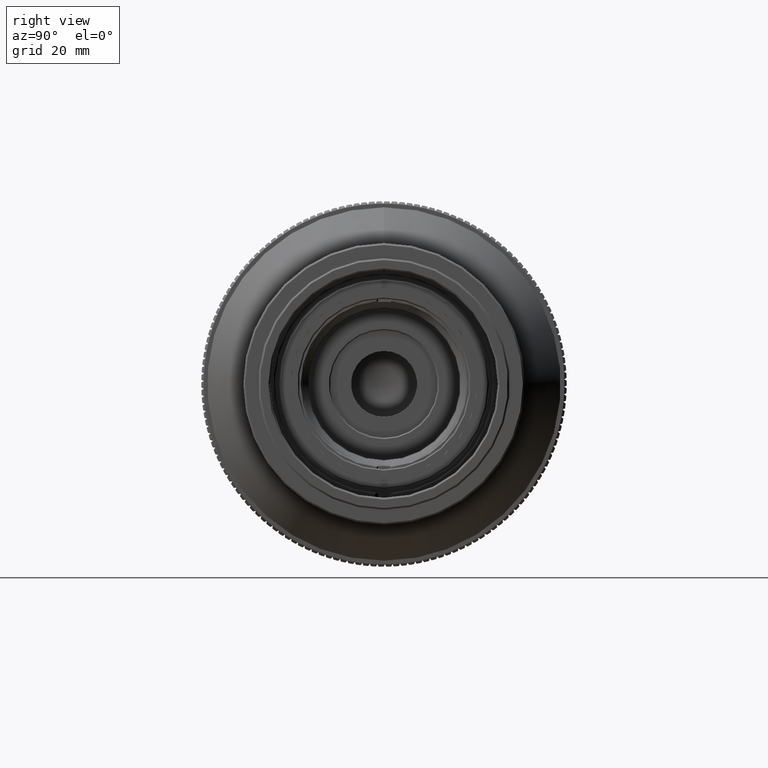
[diagram: clean part render]
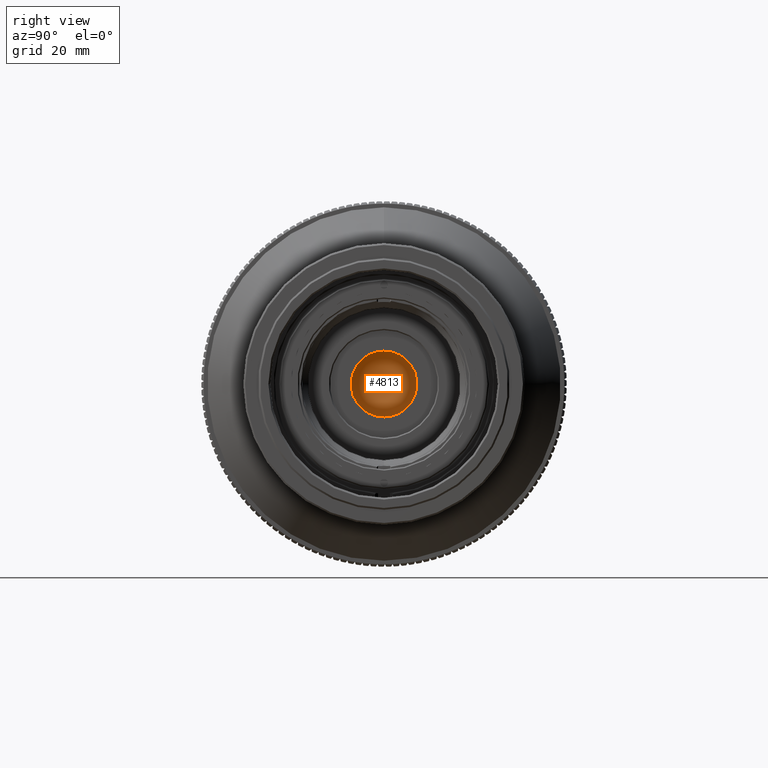
[diagram: same view with one face highlighted and labeled with its STEP entity id]
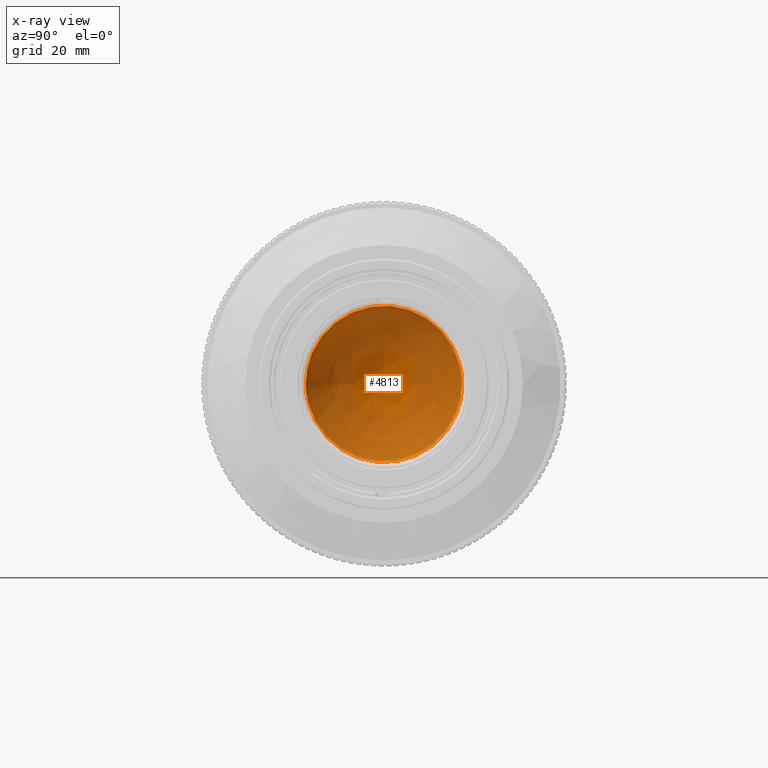
[diagram: x-ray of the same camera — body ghosted, the highlighted face saturated]
A machine part, right view. The second image highlights one B-rep face of the part: STEP entity #4813.
The next image is the same camera in x-ray: the body ghosted, the highlighted face saturated — about 82% of this face is hidden behind the body in this view.
In plain terms, the highlighted face is a freeform B-spline surface patch.
Its self-contained STEP definition (entity closure, byte-faithful):
#427 = CARTESIAN_POINT ( 'NONE',  ( 8.200000000000017100, 1.698731680499783000, -12.94654435383073800 ) ) ;
#713 = CARTESIAN_POINT ( 'NONE',  ( 8.199999999999997500, -9.528877319605241400, -8.927243212022219200 ) ) ;
#1044 = CARTESIAN_POINT ( 'NONE',  ( 8.200000000000004600, -12.96585654110461800, -1.709786976523573100 ) ) ;
#2227 = ORIENTED_EDGE ( 'NONE', *, *, #18118, .T. ) ;
#2489 = CARTESIAN_POINT ( 'NONE',  ( 8.200000000000025900, -0.8432829929322723800, 13.03025609195274000 ) ) ;
#2776 = CARTESIAN_POINT ( 'NONE',  ( 8.199999999999995700, 5.775295745691816600, 11.71078025835466900 ) ) ;
#3083 = CARTESIAN_POINT ( 'NONE',  ( 8.199999999999992200, 13.05044060558875600, 0.8620959433687409600 ) ) ;
#3424 = CARTESIAN_POINT ( 'NONE',  ( 8.200000000000004600, 12.36563833854069600, 4.193855915052433000 ) ) ;
#3711 = CARTESIAN_POINT ( 'NONE',  ( 8.200000000000008200, -10.37213271549747200, 7.965893339155259800 ) ) ;
#4813 = ADVANCED_FACE ( 'N', ( #48497 ), #68210, .F. ) ;
#5303 = CARTESIAN_POINT ( 'NONE',  ( 12.30021357082934100, -13.15614047808118400, -7.561363266006059000 ) ) ;
#5605 = VERTEX_POINT ( 'NONE', #42072 ) ;
#6984 = CARTESIAN_POINT ( 'NONE',  ( 8.199999999999997500, -11.72865552792572600, -5.786556079696522300 ) ) ;
#7263 = CARTESIAN_POINT ( 'NONE',  ( 8.200000000000006400, -5.005972773443474500, -12.07456242581705500 ) ) ;
#7576 = CARTESIAN_POINT ( 'NONE',  ( 8.199999999999997500, -11.32787469151737100, -6.536088900341035000 ) ) ;
#7912 = CARTESIAN_POINT ( 'NONE',  ( 8.199999999999983300, -3.388397724653562800, -12.61011335969059600 ) ) ;
#8220 = CARTESIAN_POINT ( 'NONE',  ( 8.199999999999990400, -12.36563833854069500, -4.193855915052430400 ) ) ;
#9696 = CARTESIAN_POINT ( 'NONE',  ( 8.199999999999985100, -7.952605061036169200, 10.38234783606360500 ) ) ;
#10339 = CARTESIAN_POINT ( 'NONE',  ( 8.200000000000017100, 10.36176191178639500, 7.945623890882695100 ) ) ;
#10636 = CARTESIAN_POINT ( 'NONE',  ( 8.199999999999999300, -9.830704729450852500, 8.626293204337784500 ) ) ;
#12548 = CARTESIAN_POINT ( 'NONE',  ( -5.544883043207582900, -6.127532647081194400, 7.377263526474753700 ) ) ;
#14236 = CARTESIAN_POINT ( 'NONE',  ( 8.199999999999995700, 11.89052231528123300, -5.395612734562442700 ) ) ;
#14559 = CARTESIAN_POINT ( 'NONE',  ( 8.199999999999983300, -4.205163689619561200, -12.36174730481860400 ) ) ;
#15156 = CARTESIAN_POINT ( 'NONE',  ( 8.199999999999997500, 6.526018627403152200, -11.30967765888454800 ) ) ;
#15471 = CARTESIAN_POINT ( 'NONE',  ( 8.199999999999995700, 7.952605061036154900, -10.38234783606361900 ) ) ;
#16936 = CARTESIAN_POINT ( 'NONE',  ( 8.200000000000001100, 11.72865552792572800, 5.786556079696524100 ) ) ;
#17243 = CARTESIAN_POINT ( 'NONE',  ( 8.199999999999995700, -5.769833465191856800, 11.71352848876192900 ) ) ;
#17527 = CARTESIAN_POINT ( 'NONE',  ( 8.200000000000001100, -0.4166853982991031700, 13.05072515442535600 ) ) ;
#17601 = B_SPLINE_CURVE_WITH_KNOTS ( 'NONE', 3,
 ( #17866, #3083, #53277, #81379, #60771, #3424, #67310, #16936, #46679, #88320, #10339, #52645, #66996, #82298, #53573, #32598, #60463, #2776, #82590, #38560, #31672, #32281, #45453, #61068, #17527, #2489, #52958, #67625, #25077, #88651, #89554, #17243, #89231, #88948, #9696, #45746, #10636, #3711, #53912, #24772, #67911, #46081, #31364, #74832, #75164, #31967, #74236 ),
 .UNSPECIFIED., .F., .F.,
 ( 4, 2, 2, 2, 2, 2, 2, 2, 2, 1, 2, 2, 2, 2, 2, 2, 2, 2, 2, 2, 2, 2, 2, 4 ),
 ( 0.0000000000000000000, 0.002549579276392495900, 0.003824368914588743600, 0.005099158552784990000, 0.007648737829177482800, 0.008923527467373730500, 0.01019831710556997500, 0.01274789638196247200, 0.01402268602015872300, 0.01529747565835497600, 0.01657226529655123100, 0.01784705493474747800, 0.02039663421113998100, 0.02167142384933623500, 0.02294621348753248700, 0.02549579276392498600, 0.02677058240212123300, 0.02804537204031748100, 0.03059495131670998000, 0.03314453059310247500, 0.03441932023129872600, 0.03569410986949497100, 0.03824368914588745900, 0.04079326842227995500 ),
 .UNSPECIFIED. ) ;
#17866 = CARTESIAN_POINT ( 'NONE',  ( 8.199999999999990400, 13.05044060558875600, 1.146269404001923400E-015 ) ) ;
#18118 = EDGE_CURVE ( 'NONE', #65199, #5605, #51968, .T. ) ;
#21048 = CARTESIAN_POINT ( 'NONE',  ( 8.199999999999990400, 13.05044060558875600, 1.146269404001923400E-015 ) ) ;
#21672 = CARTESIAN_POINT ( 'NONE',  ( 8.199999999999997500, 12.96401361773248000, -1.724776091873878800 ) ) ;
#21752 = CARTESIAN_POINT ( 'NONE',  ( 8.200000000000002800, 9.830704729450856000, -8.626293204337779100 ) ) ;
#22371 = CARTESIAN_POINT ( 'NONE',  ( 8.200000000000001100, 8.611871440086655800, -9.843340907652821800 ) ) ;
#24772 = CARTESIAN_POINT ( 'NONE',  ( 8.200000000000001100, -11.30087810632934600, 6.541201611210113700 ) ) ;
#25077 = CARTESIAN_POINT ( 'NONE',  ( 8.199999999999997500, -3.380257004760365700, 12.63391554761681800 ) ) ;
#27301 = CARTESIAN_POINT ( 'NONE',  ( 6.567404508074827300, 6.127532647081186400, -15.80273436383854400 ) ) ;
#27594 = CARTESIAN_POINT ( 'NONE',  ( 6.504671859570527700, -13.15614047808118400, 3.529906163605399900 ) ) ;
#28661 = CARTESIAN_POINT ( 'NONE',  ( 8.199999999999997500, 5.769833465191852400, -11.71352848876192500 ) ) ;
#29592 = CARTESIAN_POINT ( 'NONE',  ( 8.200000000000002800, 2.124989289671138400, -12.88333847996781000 ) ) ;
#29898 = CARTESIAN_POINT ( 'NONE',  ( 8.199999999999999300, -6.528633508465194500, -11.30811035150527900 ) ) ;
#31364 = CARTESIAN_POINT ( 'NONE',  ( 8.199999999999999300, -12.38245431823578500, 4.209685962527082400 ) ) ;
#31672 = CARTESIAN_POINT ( 'NONE',  ( 8.200000000000001100, 3.388397724653565500, 12.61011335969060800 ) ) ;
#31967 = CARTESIAN_POINT ( 'NONE',  ( 8.199999999999997500, -13.05044060558875800, 0.8620959433687406200 ) ) ;
#32281 = CARTESIAN_POINT ( 'NONE',  ( 8.199999999999995700, 2.969796144446245300, 12.71529271158119700 ) ) ;
#32598 = CARTESIAN_POINT ( 'NONE',  ( 8.200000000000001100, 6.899284528778747600, 11.08593308046961700 ) ) ;
#35442 = CARTESIAN_POINT ( 'NONE',  ( 8.199999999999990400, 13.05044060558875600, -0.8620959433687376300 ) ) ;
#36155 = CARTESIAN_POINT ( 'NONE',  ( 8.199999999999999300, 11.30087810632933900, -6.541201611210112800 ) ) ;
#36464 = CARTESIAN_POINT ( 'NONE',  ( 8.199999999999999300, -12.21985406154424300, -4.601311188521656000 ) ) ;
#37117 = CARTESIAN_POINT ( 'NONE',  ( 8.199999999999994000, -13.05044060558875600, -0.8620959433687389600 ) ) ;
#38560 = CARTESIAN_POINT ( 'NONE',  ( 8.200000000000001100, 4.205163689619562100, 12.36174730481860700 ) ) ;
#41099 = CARTESIAN_POINT ( 'NONE',  ( 6.567404508074829100, 6.127532647081186400, 15.80273436383855100 ) ) ;
#41815 = CARTESIAN_POINT ( 'NONE',  ( 8.199999999999999300, -13.05044060558876000, 1.146269404001922600E-015 ) ) ;
#42072 = CARTESIAN_POINT ( 'NONE',  ( 8.199999999999990400, 13.05044060558875600, 1.146269404001923400E-015 ) ) ;
#43394 = CARTESIAN_POINT ( 'NONE',  ( 8.199999999999997500, -5.775295745691821000, -11.71078025835466500 ) ) ;
#43726 = CARTESIAN_POINT ( 'NONE',  ( 8.200000000000013500, -10.36176191178639900, -7.945623890882677300 ) ) ;
#44037 = CARTESIAN_POINT ( 'NONE',  ( 8.200000000000002800, 10.37213271549748100, -7.965893339155256200 ) ) ;
#45453 = CARTESIAN_POINT ( 'NONE',  ( 8.199999999999997500, 1.706491917631545000, 12.96685454757972000 ) ) ;
#45746 = CARTESIAN_POINT ( 'NONE',  ( 8.200000000000001100, -8.611871440086648700, 9.843340907652827100 ) ) ;
#46081 = CARTESIAN_POINT ( 'NONE',  ( 8.200000000000001100, -11.89052231528123300, 5.395612734562441800 ) ) ;
#46360 = ORIENTED_EDGE ( 'NONE', *, *, #60396, .T. ) ;
#46679 = CARTESIAN_POINT ( 'NONE',  ( 8.199999999999985100, 11.32787469151738000, 6.536088900341032300 ) ) ;
#48497 = FACE_OUTER_BOUND ( 'NONE', #49134, .T. ) ;
#49134 = EDGE_LOOP ( 'NONE', ( #46360, #2227 ) ) ;
#49946 = CARTESIAN_POINT ( 'NONE',  ( 8.199999999999995700, -0.8598267455931411000, -13.04986256929888300 ) ) ;
#51167 = CARTESIAN_POINT ( 'NONE',  ( 8.200000000000001100, 3.380257004760370200, -12.63391554761682700 ) ) ;
#51968 = B_SPLINE_CURVE_WITH_KNOTS ( 'NONE', 3,
 ( #57780, #37117, #1044, #79336, #72127, #8220, #36464, #6984, #7576, #86547, #43726, #65560, #713, #72754, #79660, #87149, #29898, #43394, #7263, #14559, #7912, #58097, #64635, #49946, #86839, #57166, #427, #29592, #51167, #71498, #86246, #28661, #15156, #65268, #15471, #22371, #21752, #44037, #64341, #36155, #58413, #14236, #78749, #71828, #21672, #35442, #21048 ),
 .UNSPECIFIED., .F., .F.,
 ( 4, 2, 2, 2, 2, 2, 2, 2, 2, 1, 2, 2, 2, 2, 2, 2, 2, 2, 2, 2, 2, 2, 2, 4 ),
 ( 0.04079326842227995500, 0.04334284769867244300, 0.04461763733686868700, 0.04589242697506493200, 0.04844200625145742000, 0.04971679588965366400, 0.05099158552784991600, 0.05354116480424241100, 0.05481595444243865500, 0.05609074408063490600, 0.05736553371883115100, 0.05864032335702740200, 0.06118990263341989700, 0.06246469227161614800, 0.06373948190981239300, 0.06628906118620489500, 0.06756385082440113900, 0.06883864046259738400, 0.07138821973898988600, 0.07393779901538238800, 0.07521258865357863300, 0.07648737829177487700, 0.07903695756816736500, 0.08158653684455986800 ),
 .UNSPECIFIED. ) ;
#52645 = CARTESIAN_POINT ( 'NONE',  ( 8.200000000000013500, 9.816025605849420200, 8.610731109332203200 ) ) ;
#52958 = CARTESIAN_POINT ( 'NONE',  ( 8.200000000000024200, -1.698731680499783400, 12.94654435383074000 ) ) ;
#53277 = CARTESIAN_POINT ( 'NONE',  ( 8.200000000000001100, 12.96585654110461200, 1.709786976523576900 ) ) ;
#53573 = CARTESIAN_POINT ( 'NONE',  ( 8.199999999999999300, 7.969023055446311500, 10.37038228015489800 ) ) ;
#53912 = CARTESIAN_POINT ( 'NONE',  ( 8.200000000000006400, -11.08141558076415800, 6.906292577502787500 ) ) ;
#56093 = CARTESIAN_POINT ( 'NONE',  ( -5.544883043207579300, -6.127532647081194400, -7.377263526474750100 ) ) ;
#57166 = CARTESIAN_POINT ( 'NONE',  ( 8.200000000000017100, 0.8432829929322701600, -13.03025609195273700 ) ) ;
#57780 = CARTESIAN_POINT ( 'NONE',  ( 8.199999999999999300, -13.05044060558876000, 1.146269404001922600E-015 ) ) ;
#58097 = CARTESIAN_POINT ( 'NONE',  ( 8.199999999999995700, -2.969796144446240800, -12.71529271158119700 ) ) ;
#58413 = CARTESIAN_POINT ( 'NONE',  ( 8.200000000000002800, 11.70516161525318600, -5.786739673893687400 ) ) ;
#60396 = EDGE_CURVE ( 'NONE', #5605, #65199, #17601, .T. ) ;
#60463 = CARTESIAN_POINT ( 'NONE',  ( 8.199999999999997500, 6.528633508465191000, 11.30811035150528600 ) ) ;
#60771 = CARTESIAN_POINT ( 'NONE',  ( 8.200000000000001100, 12.61400699396870600, 3.374057870267851600 ) ) ;
#61068 = CARTESIAN_POINT ( 'NONE',  ( 8.200000000000001100, 0.8598267455931409800, 13.04986256929888800 ) ) ;
#62653 = CARTESIAN_POINT ( 'NONE',  ( -5.544883043207585500, 6.127532647081189100, -7.377263526474751900 ) ) ;
#62966 = CARTESIAN_POINT ( 'NONE',  ( 12.30021357082934200, -13.15614047808118400, 7.561363266006060800 ) ) ;
#63879 = CARTESIAN_POINT ( 'NONE',  ( 6.504671859570521500, 13.15614047808117900, -3.529906163605399900 ) ) ;
#64341 = CARTESIAN_POINT ( 'NONE',  ( 8.200000000000001100, 11.08141558076415700, -6.906292577502783000 ) ) ;
#64635 = CARTESIAN_POINT ( 'NONE',  ( 8.199999999999997500, -1.706491917631541200, -12.96685454757971800 ) ) ;
#65199 = VERTEX_POINT ( 'NONE', #41815 ) ;
#65268 = CARTESIAN_POINT ( 'NONE',  ( 8.199999999999995700, 6.891728659413876000, -11.09048441441904100 ) ) ;
#65560 = CARTESIAN_POINT ( 'NONE',  ( 8.200000000000013500, -9.816025605849432600, -8.610731109332196100 ) ) ;
#66996 = CARTESIAN_POINT ( 'NONE',  ( 8.200000000000004600, 9.528877319605241400, 8.927243212022222700 ) ) ;
#67310 = CARTESIAN_POINT ( 'NONE',  ( 8.199999999999999300, 12.21985406154424000, 4.601311188521655100 ) ) ;
#67625 = CARTESIAN_POINT ( 'NONE',  ( 8.199999999999995700, -2.124989289671133500, 12.88333847996780600 ) ) ;
#67911 = CARTESIAN_POINT ( 'NONE',  ( 8.200000000000002800, -11.70516161525318200, 5.786739673893687400 ) ) ;
#68210 =( BOUNDED_SURFACE ( )  B_SPLINE_SURFACE ( 3, 3, ( 
 ( #62966, #27594, #77048, #5303 ),
 ( #83909, #12548, #56093, #70744 ),
 ( #41099, #91141, #62653, #27301 ),
 ( #85158, #77385, #63879, #69819 ) ),
 .UNSPECIFIED., .F., .F., .F. ) 
 B_SPLINE_SURFACE_WITH_KNOTS ( ( 4, 4 ),
 ( 4, 4 ),
 ( 0.0000000000000000000, 1.000000000000000000 ),
 ( 0.0000000000000000000, 1.000000000000000000 ),
 .UNSPECIFIED. ) 
 GEOMETRIC_REPRESENTATION_ITEM ( )  RATIONAL_B_SPLINE_SURFACE ( (
 ( 1.000000000000000000, 0.7140287319784338600, 0.7140287319784338600, 1.000000000000000000),
 ( 0.7156845033619430000, 0.5110192984321433300, 0.5110192984321433300, 0.7156845033619430000),
 ( 0.7156845033619430000, 0.5110192984321433300, 0.5110192984321433300, 0.7156845033619430000),
 ( 1.000000000000000000, 0.7140287319784338600, 0.7140287319784338600, 1.000000000000000000) ) ) 
 REPRESENTATION_ITEM ( '' )  SURFACE ( )  );
#69819 = CARTESIAN_POINT ( 'NONE',  ( 12.30021357082933900, 13.15614047808118200, -7.561363266006064300 ) ) ;
#70744 = CARTESIAN_POINT ( 'NONE',  ( 6.567404508074830900, -6.127532647081192600, -15.80273436383854400 ) ) ;
#71498 = CARTESIAN_POINT ( 'NONE',  ( 8.199999999999985100, 4.193731655925681400, -12.38778528601228100 ) ) ;
#71828 = CARTESIAN_POINT ( 'NONE',  ( 8.199999999999995700, 12.62954297540311200, -3.396343015700692600 ) ) ;
#72127 = CARTESIAN_POINT ( 'NONE',  ( 8.199999999999994000, -12.61400699396870600, -3.374057870267845900 ) ) ;
#72754 = CARTESIAN_POINT ( 'NONE',  ( 8.199999999999999300, -8.625930593367630900, -9.830158633162557900 ) ) ;
#74236 = CARTESIAN_POINT ( 'NONE',  ( 8.199999999999999300, -13.05044060558876000, 1.146269404001922600E-015 ) ) ;
#74832 = CARTESIAN_POINT ( 'NONE',  ( 8.199999999999995700, -12.62954297540311000, 3.396343015700679300 ) ) ;
#75164 = CARTESIAN_POINT ( 'NONE',  ( 8.199999999999997500, -12.96401361773247800, 1.724776091873869700 ) ) ;
#77048 = CARTESIAN_POINT ( 'NONE',  ( 6.504671859570527700, -13.15614047808118400, -3.529906163605395400 ) ) ;
#77385 = CARTESIAN_POINT ( 'NONE',  ( 6.504671859570521500, 13.15614047808117900, 3.529906163605401200 ) ) ;
#78749 = CARTESIAN_POINT ( 'NONE',  ( 8.199999999999999300, 12.38245431823578700, -4.209685962527078800 ) ) ;
#79336 = CARTESIAN_POINT ( 'NONE',  ( 8.200000000000006400, -12.71729335524207400, -2.960599863898289600 ) ) ;
#79660 = CARTESIAN_POINT ( 'NONE',  ( 8.200000000000002800, -7.969023055446316000, -10.37038228015490100 ) ) ;
#81379 = CARTESIAN_POINT ( 'NONE',  ( 8.200000000000002800, 12.71729335524206800, 2.960599863898291800 ) ) ;
#82298 = CARTESIAN_POINT ( 'NONE',  ( 8.200000000000001100, 8.625930593367630900, 9.830158633162561400 ) ) ;
#82590 = CARTESIAN_POINT ( 'NONE',  ( 8.199999999999995700, 5.005972705758282800, 12.07456226115710700 ) ) ;
#83909 = CARTESIAN_POINT ( 'NONE',  ( 6.567404508074830900, -6.127532647081192600, 15.80273436383854400 ) ) ;
#85158 = CARTESIAN_POINT ( 'NONE',  ( 12.30021357082933900, 13.15614047808118200, 7.561363266006065200 ) ) ;
#86246 = CARTESIAN_POINT ( 'NONE',  ( 8.199999999999986900, 5.378696298196469900, -11.89816282059256700 ) ) ;
#86547 = CARTESIAN_POINT ( 'NONE',  ( 8.199999999999999300, -10.61771878020386100, -7.599990045353771400 ) ) ;
#86839 = CARTESIAN_POINT ( 'NONE',  ( 8.200000000000002800, 0.4166853982991018900, -13.05072515442535200 ) ) ;
#87149 = CARTESIAN_POINT ( 'NONE',  ( 8.200000000000001100, -6.899284528778751200, -11.08593308046961200 ) ) ;
#88320 = CARTESIAN_POINT ( 'NONE',  ( 8.199999999999985100, 10.61771878020386200, 7.599990045353769700 ) ) ;
#88651 = CARTESIAN_POINT ( 'NONE',  ( 8.199999999999995700, -4.193731655925685000, 12.38778528601228500 ) ) ;
#88948 = CARTESIAN_POINT ( 'NONE',  ( 8.199999999999985100, -6.891728659413885800, 11.09048441441902400 ) ) ;
#89231 = CARTESIAN_POINT ( 'NONE',  ( 8.199999999999994000, -6.526018627403155700, 11.30967765888454600 ) ) ;
#89554 = CARTESIAN_POINT ( 'NONE',  ( 8.199999999999995700, -5.378696298196473400, 11.89816282059256900 ) ) ;
#91141 = CARTESIAN_POINT ( 'NONE',  ( -5.544883043207587300, 6.127532647081189100, 7.377263526474757200 ) ) ;